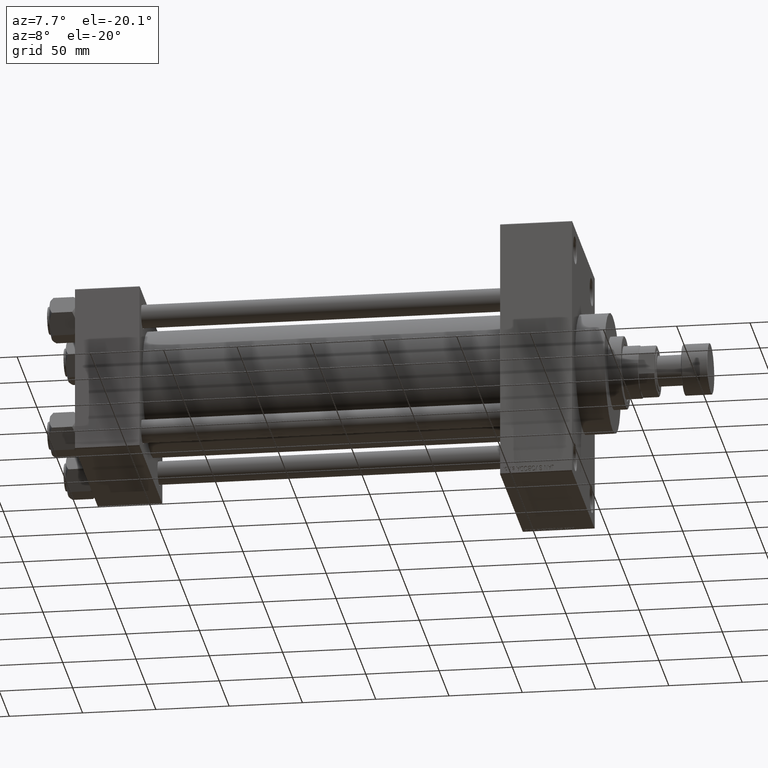
[diagram: clean part render]
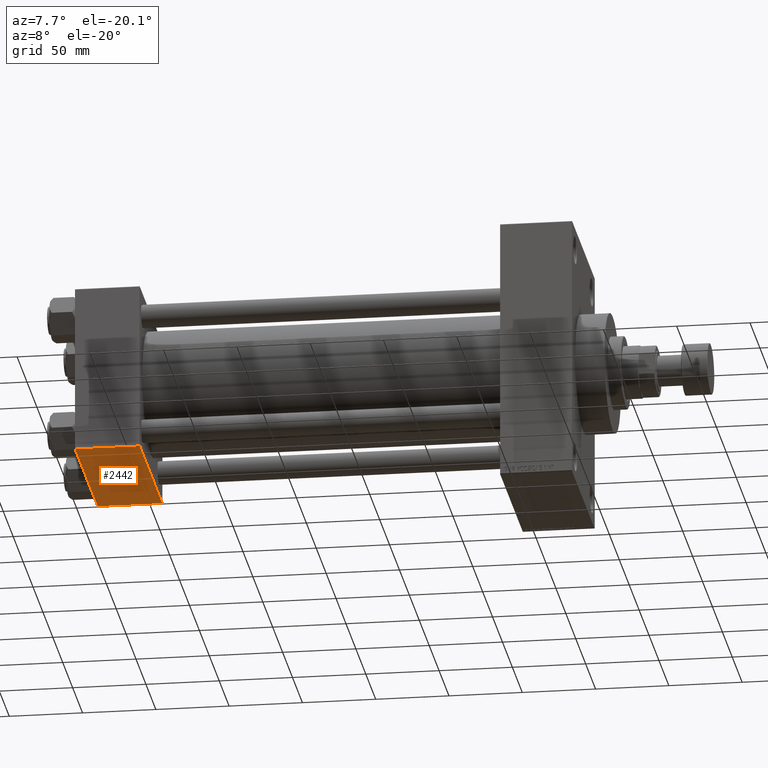
[diagram: same view with one face highlighted and labeled with its STEP entity id]
A machine part, auxiliary view. The second image highlights one B-rep face of the part: STEP entity #2442.
In plain terms, the highlighted planar face has unit normal (0, 0, -1).
Its self-contained STEP definition (entity closure, byte-faithful):
#631 = VERTEX_POINT ( 'NONE', #18579 ) ;
#2442 = ADVANCED_FACE ( 'NONE', ( #41204 ), #18796, .T. ) ;
#2789 = EDGE_CURVE ( 'NONE', #21491, #5071, #18676, .T. ) ;
#5071 = VERTEX_POINT ( 'NONE', #42772 ) ;
#6222 = VECTOR ( 'NONE', #8005, 1000.000000000000000 ) ;
#6883 = VECTOR ( 'NONE', #26942, 1000.000000000000000 ) ;
#7002 = CARTESIAN_POINT ( 'NONE',  ( 0.000000000000000000, 57.00000000000002132, -57.49999999999999289 ) ) ;
#7327 = CARTESIAN_POINT ( 'NONE',  ( 44.00000000000000000, 57.49999999999999289, -57.49999999999999289 ) ) ;
#7861 = DIRECTION ( 'NONE',  ( 0.000000000000000000, 1.000000000000000000, 1.206764157201257045E-16 ) ) ;
#8005 = DIRECTION ( 'NONE',  ( -1.000000000000000000, 0.000000000000000000, 0.000000000000000000 ) ) ;
#8919 = ORIENTED_EDGE ( 'NONE', *, *, #9923, .T. ) ;
#9923 = EDGE_CURVE ( 'NONE', #631, #5071, #33315, .T. ) ;
#11205 = LINE ( 'NONE', #7327, #21365 ) ;
#12090 = CARTESIAN_POINT ( 'NONE',  ( 0.000000000000000000, 57.49999999999999289, -57.49999999999999289 ) ) ;
#13583 = ORIENTED_EDGE ( 'NONE', *, *, #24991, .T. ) ;
#16097 = ORIENTED_EDGE ( 'NONE', *, *, #2789, .F. ) ;
#18579 = CARTESIAN_POINT ( 'NONE',  ( 44.00000000000000000, -57.00000000000000711, -57.50000000000000711 ) ) ;
#18676 = LINE ( 'NONE', #12090, #6883 ) ;
#18796 = PLANE ( 'NONE',  #29394 ) ;
#19216 = DIRECTION ( 'NONE',  ( 0.000000000000000000, -1.000000000000000000, -1.206764157201257045E-16 ) ) ;
#21365 = VECTOR ( 'NONE', #19216, 1000.000000000000000 ) ;
#21491 = VERTEX_POINT ( 'NONE', #7002 ) ;
#24991 = EDGE_CURVE ( 'NONE', #21491, #25719, #42126, .T. ) ;
#25162 = ORIENTED_EDGE ( 'NONE', *, *, #38883, .T. ) ;
#25719 = VERTEX_POINT ( 'NONE', #41276 ) ;
#26942 = DIRECTION ( 'NONE',  ( 0.000000000000000000, -1.000000000000000000, -1.206764157201257045E-16 ) ) ;
#29394 = AXIS2_PLACEMENT_3D ( 'NONE', #33653, #40249, #7861 ) ;
#33315 = LINE ( 'NONE', #44521, #6222 ) ;
#33653 = CARTESIAN_POINT ( 'NONE',  ( 44.00000000000000000, 57.49999999999999289, -57.49999999999999289 ) ) ;
#34339 = EDGE_LOOP ( 'NONE', ( #16097, #13583, #25162, #8919 ) ) ;
#34567 = CARTESIAN_POINT ( 'NONE',  ( 44.00000000000000000, 57.00000000000002132, -57.49999999999999289 ) ) ;
#35784 = VECTOR ( 'NONE', #37989, 1000.000000000000000 ) ;
#37989 = DIRECTION ( 'NONE',  ( 1.000000000000000000, 0.000000000000000000, 0.000000000000000000 ) ) ;
#38883 = EDGE_CURVE ( 'NONE', #25719, #631, #11205, .T. ) ;
#40249 = DIRECTION ( 'NONE',  ( 0.000000000000000000, 1.206764157201257045E-16, -1.000000000000000000 ) ) ;
#41204 = FACE_OUTER_BOUND ( 'NONE', #34339, .T. ) ;
#41276 = CARTESIAN_POINT ( 'NONE',  ( 44.00000000000000000, 57.00000000000002132, -57.49999999999999289 ) ) ;
#42126 = LINE ( 'NONE', #34567, #35784 ) ;
#42772 = CARTESIAN_POINT ( 'NONE',  ( 0.000000000000000000, -57.00000000000000711, -57.50000000000000711 ) ) ;
#44521 = CARTESIAN_POINT ( 'NONE',  ( 0.000000000000000000, -57.00000000000000711, -57.50000000000000711 ) ) ;